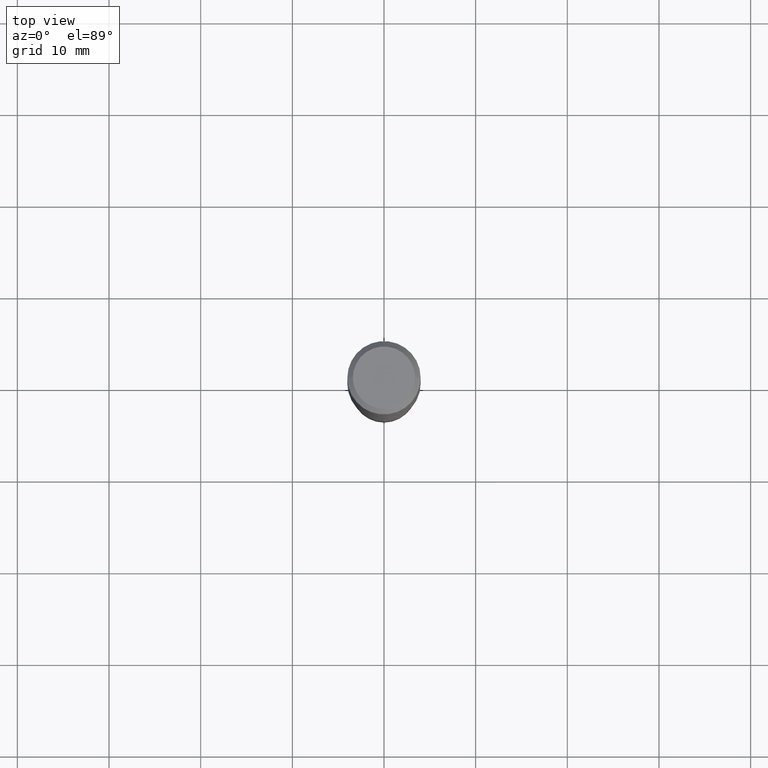
[diagram: clean part render]
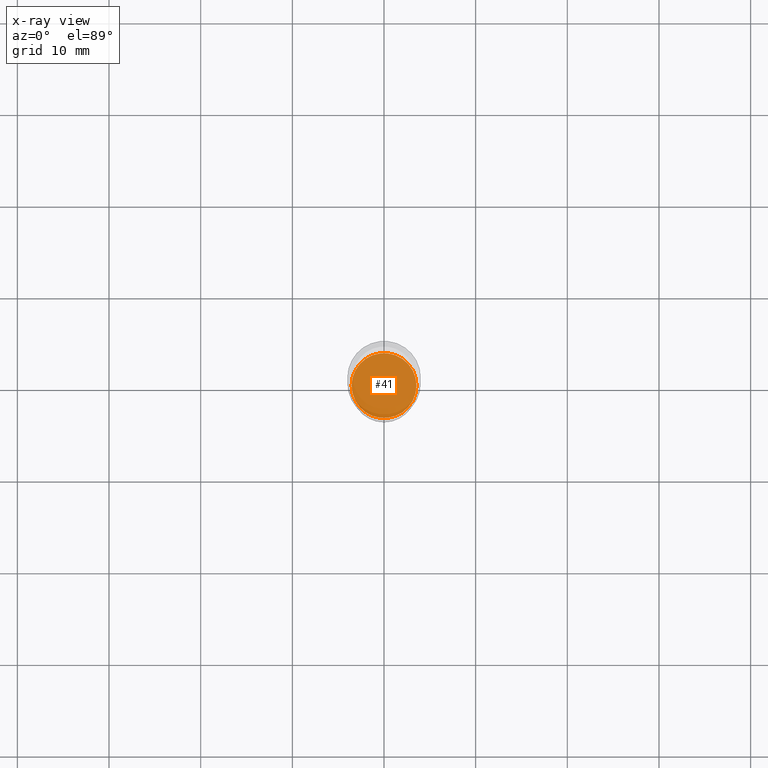
[diagram: x-ray — body ghosted, one internal face saturated and labeled with its STEP entity id]
A machine part, top view, then the same camera in x-ray: the body is ghosted and one INTERNAL B-rep face — a face not visible from any outside direction — is saturated and labeled: STEP entity #41.
In plain terms, the highlighted planar face has unit normal (-0, 0, 1).
Its self-contained STEP definition (entity closure, byte-faithful):
#41 = ADVANCED_FACE ( 'NONE', ( #412 ), #107, .F. ) ;
#46 = DIRECTION ( 'NONE',  ( -2.445468806185136597E-29, 3.491481338843145583E-15, 1.000000000000000000 ) ) ;
#67 = DIRECTION ( 'NONE',  ( -2.445468806185136597E-29, 3.491481338843145583E-15, 1.000000000000000000 ) ) ;
#101 = CARTESIAN_POINT ( 'NONE',  ( 0.1392500000000000127, -7.845358568380544694E-15, -1.968500000000000139 ) ) ;
#102 = DIRECTION ( 'NONE',  ( -2.438088387897960049E-29, 3.491481338843145188E-15, 1.000000000000000000 ) ) ;
#107 = PLANE ( 'NONE',  #204 ) ;
#108 = EDGE_CURVE ( 'NONE', #352, #375, #402, .T. ) ;
#136 = AXIS2_PLACEMENT_3D ( 'NONE', #417, #67, #308 ) ;
#141 = EDGE_LOOP ( 'NONE', ( #447, #325 ) ) ;
#165 = DIRECTION ( 'NONE',  ( 1.000000000000000000, -6.982962677686267499E-15, 0.000000000000000000 ) ) ;
#198 = EDGE_CURVE ( 'NONE', #375, #352, #356, .T. ) ;
#204 = AXIS2_PLACEMENT_3D ( 'NONE', #347, #102, #491 ) ;
#280 = CARTESIAN_POINT ( 'NONE',  ( 4.813905344975441835E-29, -6.872981015512731707E-15, -1.968500000000000139 ) ) ;
#298 = AXIS2_PLACEMENT_3D ( 'NONE', #280, #46, #165 ) ;
#308 = DIRECTION ( 'NONE',  ( 1.000000000000000000, -6.982962677686267499E-15, 0.000000000000000000 ) ) ;
#325 = ORIENTED_EDGE ( 'NONE', *, *, #198, .F. ) ;
#347 = CARTESIAN_POINT ( 'NONE',  ( 4.813905344975441835E-29, -6.872981015512731707E-15, -1.968500000000000139 ) ) ;
#352 = VERTEX_POINT ( 'NONE', #101 ) ;
#356 = CIRCLE ( 'NONE', #298, 0.1392500000000000127 ) ;
#374 = CARTESIAN_POINT ( 'NONE',  ( -0.1392500000000000127, -5.880901028792681105E-15, -1.968500000000000139 ) ) ;
#375 = VERTEX_POINT ( 'NONE', #374 ) ;
#402 = CIRCLE ( 'NONE', #136, 0.1392500000000000127 ) ;
#412 = FACE_OUTER_BOUND ( 'NONE', #141, .T. ) ;
#417 = CARTESIAN_POINT ( 'NONE',  ( 4.813905344975441835E-29, -6.872981015512731707E-15, -1.968500000000000139 ) ) ;
#447 = ORIENTED_EDGE ( 'NONE', *, *, #108, .F. ) ;
#491 = DIRECTION ( 'NONE',  ( 1.000000000000000000, -6.982962677686265922E-15, 4.876176775795935793E-29 ) ) ;